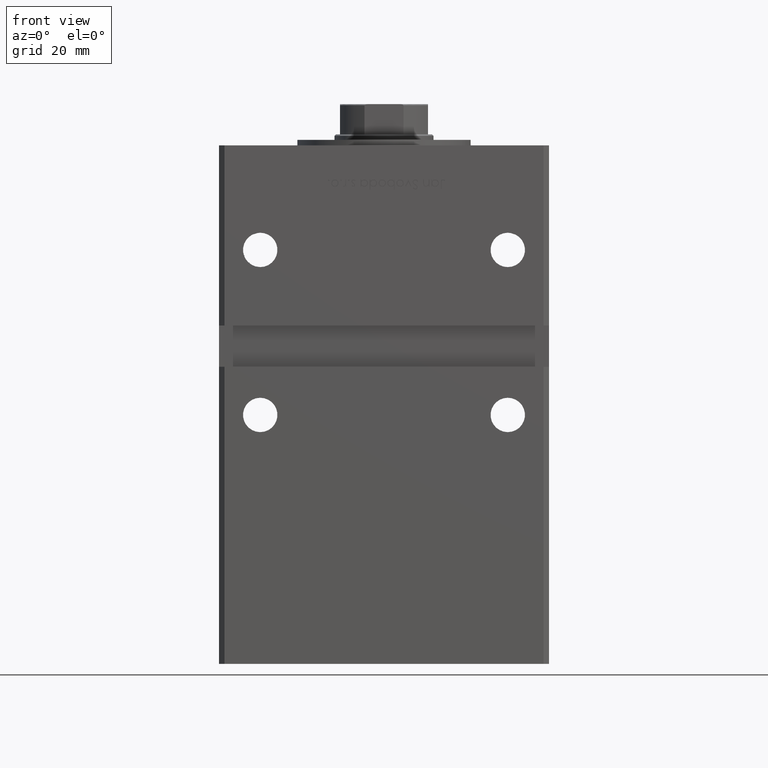
[diagram: clean part render]
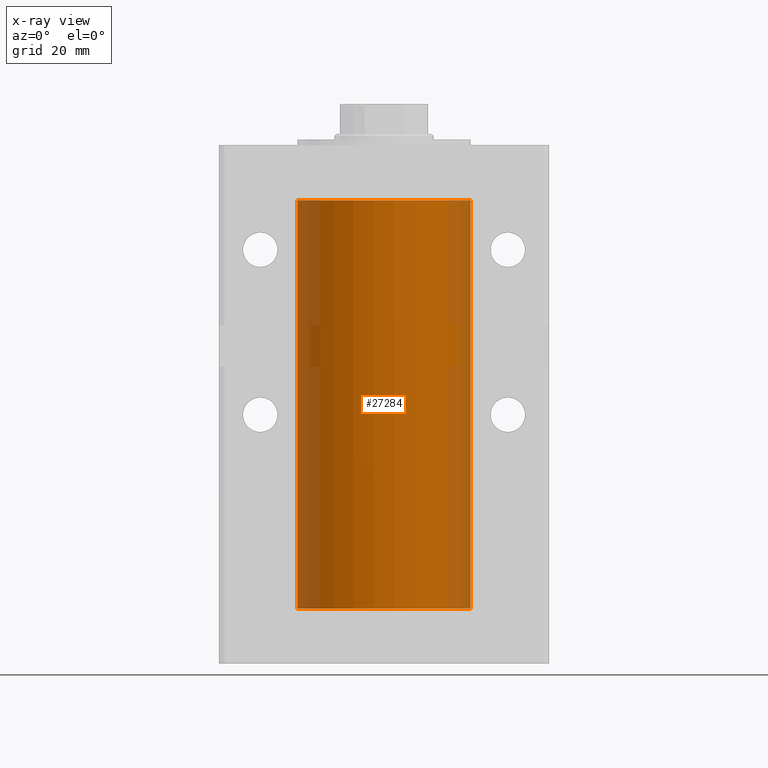
[diagram: x-ray — body ghosted, one internal face saturated and labeled with its STEP entity id]
A machine part, front view, then the same camera in x-ray: the body is ghosted and one INTERNAL B-rep face — a face not visible from any outside direction — is saturated and labeled: STEP entity #27284.
In plain terms, the highlighted cylindrical surface (partial cylindrical patch) has radius 31.5 mm, axis along (-0, -0, -1).
Its self-contained STEP definition (entity closure, byte-faithful):
#190 = ORIENTED_EDGE ( 'NONE', *, *, #45661, .F. ) ;
#259 = EDGE_LOOP ( 'NONE', ( #21367, #17826, #35252, #190 ) ) ;
#313 = CARTESIAN_POINT ( 'NONE',  ( 31.50000000000000000, 3.857637417314162689E-15, 148.5000000000000000 ) ) ;
#2373 = VERTEX_POINT ( 'NONE', #9727 ) ;
#3969 = DIRECTION ( 'NONE',  ( -1.000000000000000000, 0.000000000000000000, 0.000000000000000000 ) ) ;
#5622 = VERTEX_POINT ( 'NONE', #6405 ) ;
#6405 = CARTESIAN_POINT ( 'NONE',  ( 31.50000000000000000, 3.857637417314162689E-15, 148.5000000000000000 ) ) ;
#8526 = DIRECTION ( 'NONE',  ( 1.000000000000000000, 0.000000000000000000, 0.000000000000000000 ) ) ;
#9302 = CARTESIAN_POINT ( 'NONE',  ( 31.50000000000000000, 3.857637417314162689E-15, 0.000000000000000000 ) ) ;
#9673 = EDGE_CURVE ( 'NONE', #2373, #13131, #15764, .T. ) ;
#9727 = CARTESIAN_POINT ( 'NONE',  ( -31.50000000000000000, 0.000000000000000000, 0.000000000000000000 ) ) ;
#10768 = AXIS2_PLACEMENT_3D ( 'NONE', #56127, #17083, #8526 ) ;
#12267 = CARTESIAN_POINT ( 'NONE',  ( 0.000000000000000000, 0.000000000000000000, 148.5000000000000000 ) ) ;
#13131 = VERTEX_POINT ( 'NONE', #9302 ) ;
#15764 = CIRCLE ( 'NONE', #47599, 31.50000000000000000 ) ;
#17083 = DIRECTION ( 'NONE',  ( -0.000000000000000000, 0.000000000000000000, 1.000000000000000000 ) ) ;
#17096 = DIRECTION ( 'NONE',  ( -0.000000000000000000, -0.000000000000000000, -1.000000000000000000 ) ) ;
#17746 = DIRECTION ( 'NONE',  ( 1.000000000000000000, 0.000000000000000000, 0.000000000000000000 ) ) ;
#17826 = ORIENTED_EDGE ( 'NONE', *, *, #26375, .T. ) ;
#21035 = CARTESIAN_POINT ( 'NONE',  ( -31.50000000000000000, 0.000000000000000000, 148.5000000000000000 ) ) ;
#21367 = ORIENTED_EDGE ( 'NONE', *, *, #37156, .T. ) ;
#21375 = CYLINDRICAL_SURFACE ( 'NONE', #44195, 31.50000000000000000 ) ;
#21751 = CARTESIAN_POINT ( 'NONE',  ( 0.000000000000000000, 0.000000000000000000, 0.000000000000000000 ) ) ;
#25312 = DIRECTION ( 'NONE',  ( -0.000000000000000000, -0.000000000000000000, -1.000000000000000000 ) ) ;
#25707 = DIRECTION ( 'NONE',  ( -0.000000000000000000, -0.000000000000000000, -1.000000000000000000 ) ) ;
#25925 = FACE_OUTER_BOUND ( 'NONE', #259, .T. ) ;
#25954 = VECTOR ( 'NONE', #25707, 1000.000000000000000 ) ;
#26300 = DIRECTION ( 'NONE',  ( -0.000000000000000000, 0.000000000000000000, 1.000000000000000000 ) ) ;
#26375 = EDGE_CURVE ( 'NONE', #5622, #13131, #39373, .T. ) ;
#27284 = ADVANCED_FACE ( 'NONE', ( #25925 ), #21375, .F. ) ;
#28628 = CARTESIAN_POINT ( 'NONE',  ( -31.50000000000000000, 0.000000000000000000, 148.5000000000000000 ) ) ;
#34125 = LINE ( 'NONE', #21035, #46405 ) ;
#35252 = ORIENTED_EDGE ( 'NONE', *, *, #9673, .F. ) ;
#37156 = EDGE_CURVE ( 'NONE', #39488, #5622, #46260, .T. ) ;
#39373 = LINE ( 'NONE', #313, #25954 ) ;
#39488 = VERTEX_POINT ( 'NONE', #28628 ) ;
#44195 = AXIS2_PLACEMENT_3D ( 'NONE', #12267, #17096, #3969 ) ;
#45661 = EDGE_CURVE ( 'NONE', #39488, #2373, #34125, .T. ) ;
#46260 = CIRCLE ( 'NONE', #10768, 31.50000000000000000 ) ;
#46405 = VECTOR ( 'NONE', #25312, 1000.000000000000000 ) ;
#47599 = AXIS2_PLACEMENT_3D ( 'NONE', #21751, #26300, #17746 ) ;
#56127 = CARTESIAN_POINT ( 'NONE',  ( 0.000000000000000000, 0.000000000000000000, 148.5000000000000000 ) ) ;